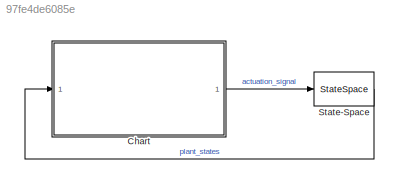
MODEL slx_97fe4de6085e
KIND model
CONFIG AbsTol = auto
CONFIG EnableMultiTasking = off
CONFIG FixedStep = auto
CONFIG MaxStep = auto
CONFIG MinStep = auto
CONFIG RelTol = 1e-3
CONFIG SampleTimeConstraint = Unconstrained
CONFIG SolverName = VariableStepAuto
CONFIG StartTime = 0.0
CONFIG StopTime = 10.0
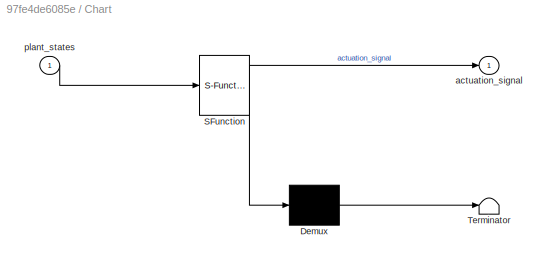
BLOCK [SubSystem] Chart
  ErrorFcn = Stateflow.Translate.translate
  PermitHierarchicalResolution = ExplicitOnly
  Ports = [1, 1]
  RequestExecContextInheritance = off
  SFBlockType = Chart
  TreatAsAtomicUnit = on
BLOCK [Demux] Chart/ Demux 
  Outputs = 1
  Ports = [1, 1]
BLOCK [S-Function] Chart/ SFunction 
  EnableBusSupport = off
  FunctionName = sf_sfun
  PortCounts = [1 2]
  Ports = [1, 2]
  SFcnIsStateOwnerBlock = off
  SFunctionDeploymentMode = off
  Tag = Stateflow S-Function 3
BLOCK [Terminator] Chart/ Terminator 
BLOCK [Outport] Chart/actuation_signal
BLOCK [Inport] Chart/plant_states
BLOCK [StateSpace] State-Space
  A = Ac
  B = Bc
  C = Cc
  ContinuousStateAttributes = {'s0','s1','s2'}
  D = Dc
  InitialCondition = 0
  Ports = [1, 1]
LINE Chart:1 -> State-Space:1
LINE State-Space:1 -> Chart:1
CHART Chart states=4 transitions=2
  STATE_LABEL 'sampling_interval  = getSamplingInterval(switching_sequence, sampling_intervals)'
  STATE_LABEL 'SCRIPT:\nfunction sampling_interval  = getSamplingInterval(switching_sequence, sampling_intervals)\n\nsampling_interval = sampling_intervals(switching_sequence);\n\nend\n'
  STATE_LABEL 'modeSwitching'
  STATE_LABEL '?'
  STATE_LABEL 'start\n\nen:\ni = 0;\ndu: i = i + 1;'
  STATE_LABEL '[mode == 1]'
  STATE_LABEL '?'
  STATE_LABEL 'start\n\nen:\ni = 0;\ndu: i = i + 1;'
CHART  states=0 transitions=0
